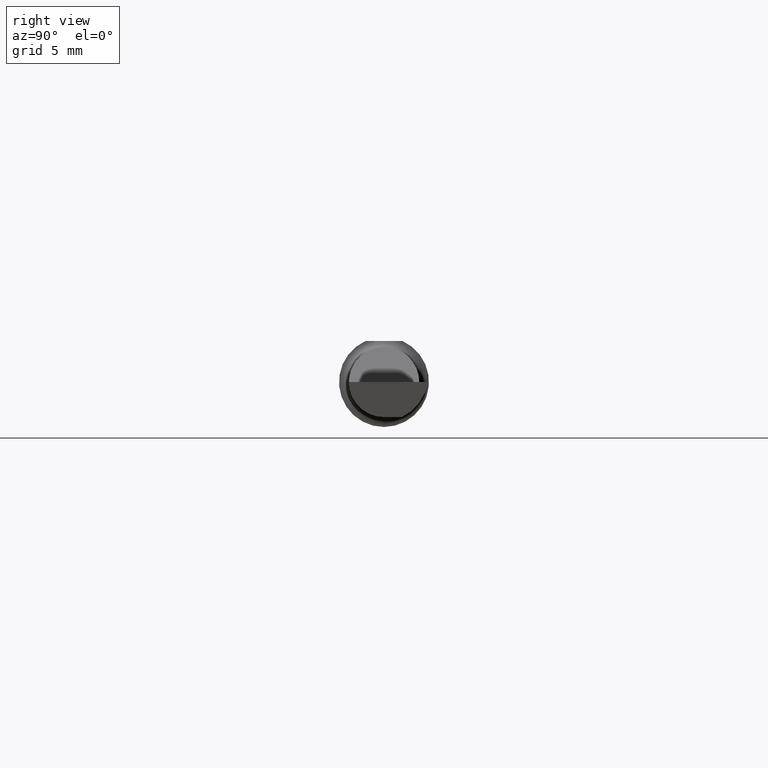
[diagram: clean part render]
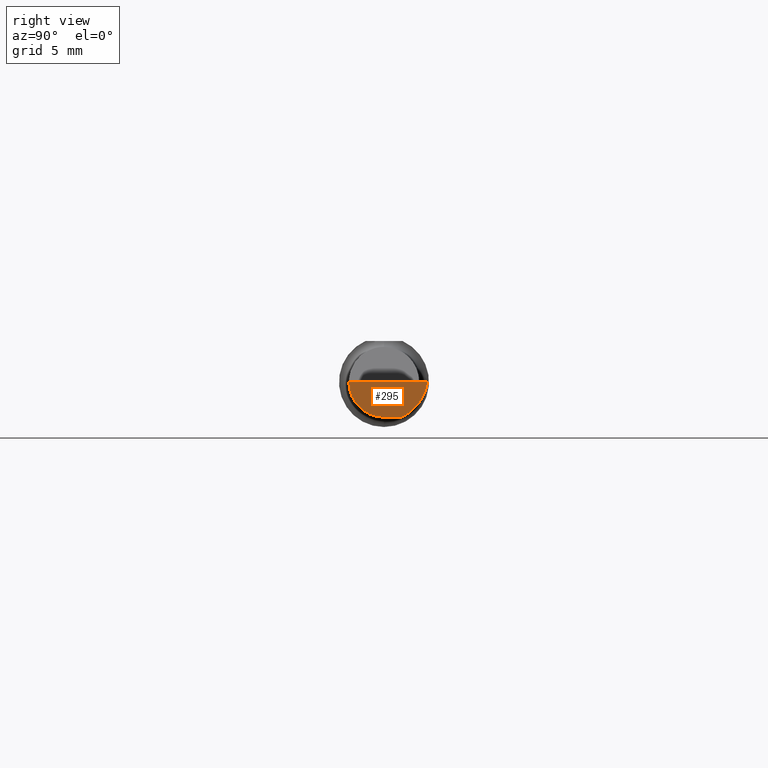
[diagram: same view with one face highlighted and labeled with its STEP entity id]
A machine part, right view. The second image highlights one B-rep face of the part: STEP entity #295.
In plain terms, the highlighted planar face has unit normal (-0.9919, 0.0349, 0.1219).
Its self-contained STEP definition (entity closure, byte-faithful):
#1 = CARTESIAN_POINT ( 'NONE',  ( 1.981736911837515880, -0.05711417766862269402, -0.09750000000000021150 ) ) ;
#11 = ORIENTED_EDGE ( 'NONE', *, *, #80, .T. ) ;
#24 = LINE ( 'NONE', #212, #438 ) ;
#28 = CARTESIAN_POINT ( 'NONE',  ( 1.985488503347493827, 0.04951655424516975684, -0.09749999999999996170 ) ) ;
#45 = VERTEX_POINT ( 'NONE', #112 ) ;
#80 = EDGE_CURVE ( 'NONE', #45, #508, #322, .T. ) ;
#83 = VERTEX_POINT ( 'NONE', #125 ) ;
#87 = PLANE ( 'NONE',  #383 ) ;
#95 = CARTESIAN_POINT ( 'NONE',  ( 1.992294917929013254, -0.09750000000000000333, -7.773844898935373068E-16 ) ) ;
#103 = VECTOR ( 'NONE', #358, 39.37007874015748143 ) ;
#112 = CARTESIAN_POINT ( 'NONE',  ( 1.985488503347493827, 0.04951655424516975684, -0.09749999999999996170 ) ) ;
#125 = CARTESIAN_POINT ( 'NONE',  ( 1.992294917929013254, -0.09750000000000000333, -7.773844898935373068E-16 ) ) ;
#210 = EDGE_CURVE ( 'NONE', #83, #508, #24, .T. ) ;
#212 = CARTESIAN_POINT ( 'NONE',  ( 2.038600769162305593, 1.218641908244754601, 1.500381962236843253E-17 ) ) ;
#228 = FACE_OUTER_BOUND ( 'NONE', #577, .T. ) ;
#235 = CARTESIAN_POINT ( 'NONE',  ( 1.985277839943183853, -0.09749999999999961475, -0.05711417766862378342 ) ) ;
#238 = CARTESIAN_POINT ( 'NONE',  ( 1.983746361272920922, 3.672515324128580088E-16, -0.09749999999999998945 ) ) ;
#295 = ADVANCED_FACE ( 'NONE', ( #228 ), #87, .F. ) ;
#306 = VERTEX_POINT ( 'NONE', #423 ) ;
#322 =( BOUNDED_CURVE ( )  B_SPLINE_CURVE ( 3, ( #28, #452, #503, #413 ),
 .UNSPECIFIED., .F., .T. ) 
 B_SPLINE_CURVE_WITH_KNOTS ( ( 4, 4 ),
 ( 3.857216710315419128, 4.865487188745961866 ),
 .UNSPECIFIED. ) 
 CURVE ( )  GEOMETRIC_REPRESENTATION_ITEM ( )  RATIONAL_B_SPLINE_CURVE ( ( 1.000000000000000000, 0.9170616832287904474, 0.9170616832287904474, 1.000000000000000000 ) ) 
 REPRESENTATION_ITEM ( '' )  );
#341 = EDGE_CURVE ( 'NONE', #83, #306, #532, .T. ) ;
#342 = CARTESIAN_POINT ( 'NONE',  ( 1.999968171209103529, 0.1205953366697382900, 2.106509079813542075E-19 ) ) ;
#358 = DIRECTION ( 'NONE',  ( -0.03516126778371352762, -0.9993816514464540779, 0.000000000000000000 ) ) ;
#374 = CARTESIAN_POINT ( 'NONE',  ( 1.939102448053027228, 0.1236265893741514271, -0.4962730758206620463 ) ) ;
#383 = AXIS2_PLACEMENT_3D ( 'NONE', #374, #472, #561 ) ;
#400 = LINE ( 'NONE', #597, #103 ) ;
#406 = DIRECTION ( 'NONE',  ( 0.03516126778371352762, 0.9993816514464540779, 1.346392927460651261E-17 ) ) ;
#413 = CARTESIAN_POINT ( 'NONE',  ( 1.999968171209103529, 0.1205953366697382900, 2.106509079813542075E-19 ) ) ;
#423 = CARTESIAN_POINT ( 'NONE',  ( 1.983746361272920922, 3.672515324128580088E-16, -0.09749999999999998945 ) ) ;
#437 = ORIENTED_EDGE ( 'NONE', *, *, #570, .F. ) ;
#438 = VECTOR ( 'NONE', #406, 39.37007874015748143 ) ;
#452 = CARTESIAN_POINT ( 'NONE',  ( 1.989165793966494400, 0.08925672504820206243, -0.07894960534390330076 ) ) ;
#456 = ORIENTED_EDGE ( 'NONE', *, *, #341, .T. ) ;
#472 = DIRECTION ( 'NONE',  ( -0.9919324126695066024, 0.03489918104333563503, 0.1218693392866155439 ) ) ;
#503 = CARTESIAN_POINT ( 'NONE',  ( 1.994428859736375070, 0.1150924217174142533, -0.04351033163488299271 ) ) ;
#508 = VERTEX_POINT ( 'NONE', #342 ) ;
#532 =( BOUNDED_CURVE ( )  B_SPLINE_CURVE ( 3, ( #95, #235, #1, #238 ),
 .UNSPECIFIED., .F., .T. ) 
 B_SPLINE_CURVE_WITH_KNOTS ( ( 4, 4 ),
 ( 4.991290653100386443, 6.562086979895279448 ),
 .UNSPECIFIED. ) 
 CURVE ( )  GEOMETRIC_REPRESENTATION_ITEM ( )  RATIONAL_B_SPLINE_CURVE ( ( 1.000000000000000000, 0.8047378541243658256, 0.8047378541243658256, 1.000000000000000000 ) ) 
 REPRESENTATION_ITEM ( '' )  );
#561 = DIRECTION ( 'NONE',  ( 0.1219436227025736258, 0.000000000000000000, 0.9925370284690503420 ) ) ;
#563 = ORIENTED_EDGE ( 'NONE', *, *, #210, .F. ) ;
#570 = EDGE_CURVE ( 'NONE', #45, #306, #400, .T. ) ;
#577 = EDGE_LOOP ( 'NONE', ( #437, #11, #563, #456 ) ) ;
#597 = CARTESIAN_POINT ( 'NONE',  ( 1.981293777708130310, -0.06970929001673238645, -0.09749999999999996170 ) ) ;